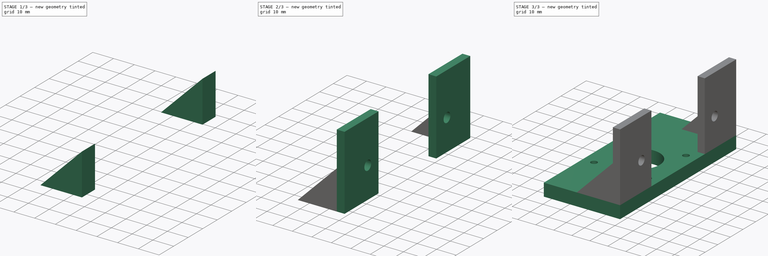
[diagram: build sequence overview — one tinted view per stage of 3, left to right]
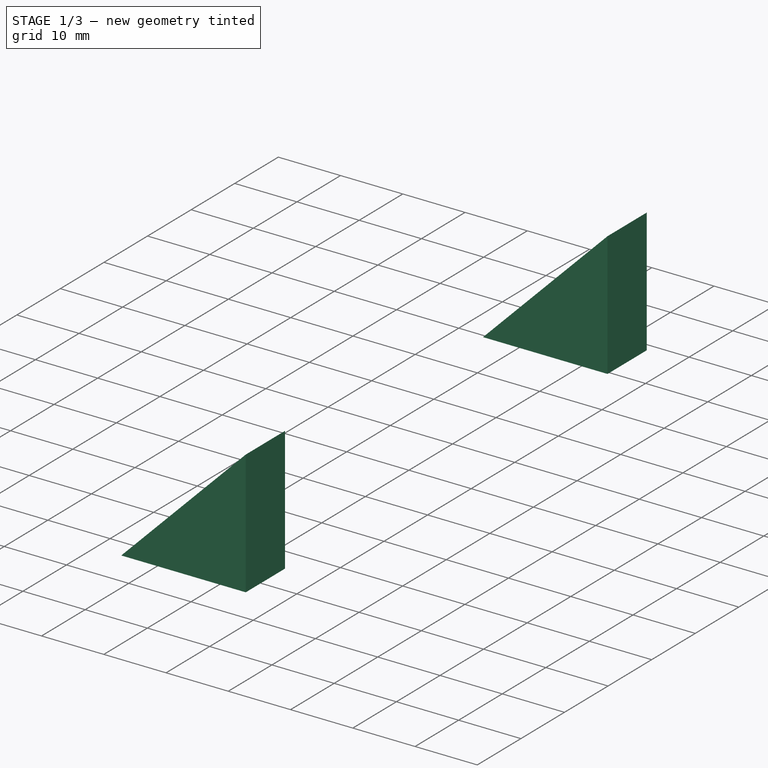
[diagram: stage 1 of 3 — iso view after this stage's code; geometry added in this stage tinted green]
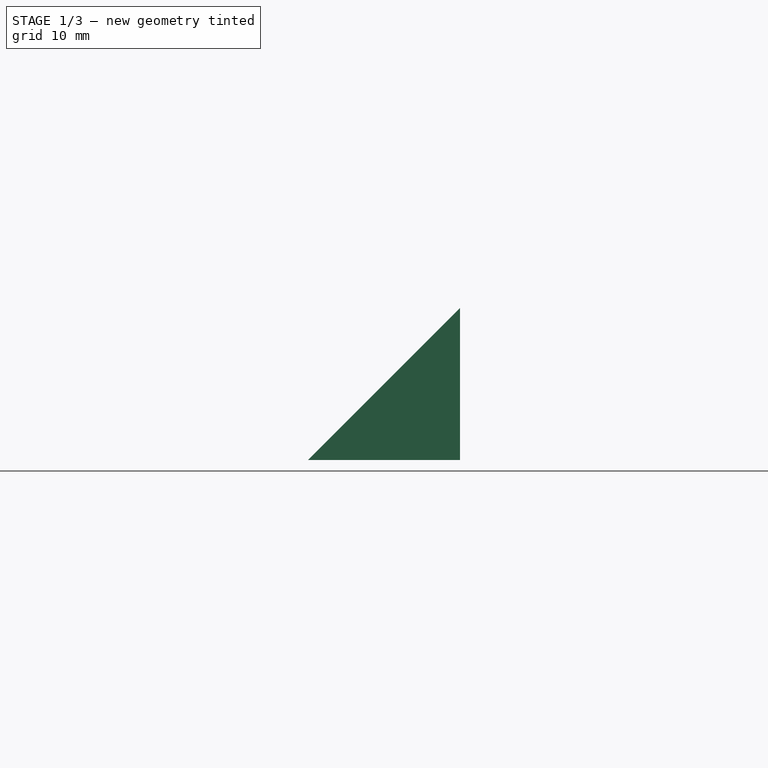
[diagram: stage 1 of 3 — front view after this stage's code; geometry added in this stage tinted green]
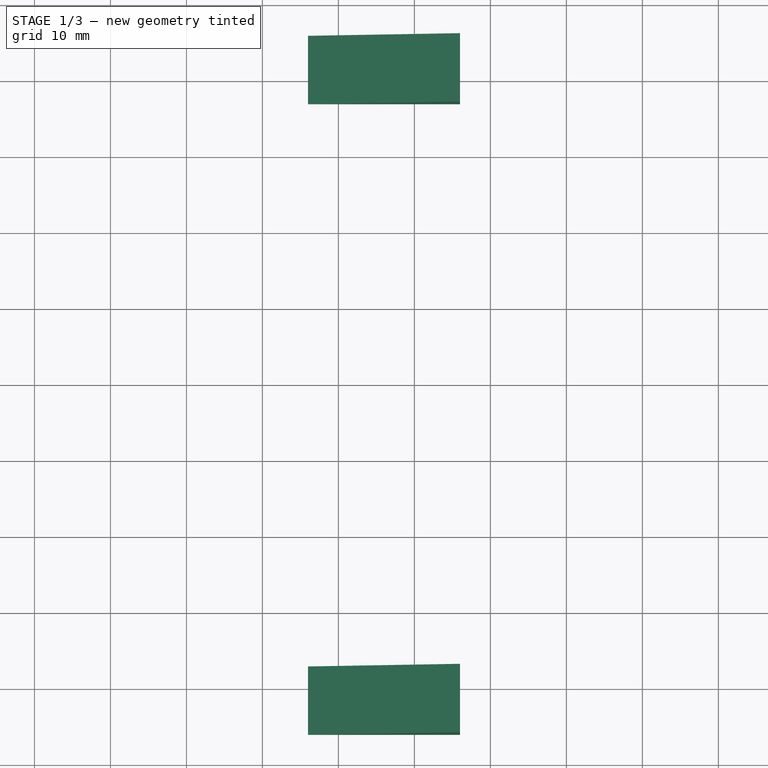
[diagram: stage 1 of 3 — top view after this stage's code; geometry added in this stage tinted green]
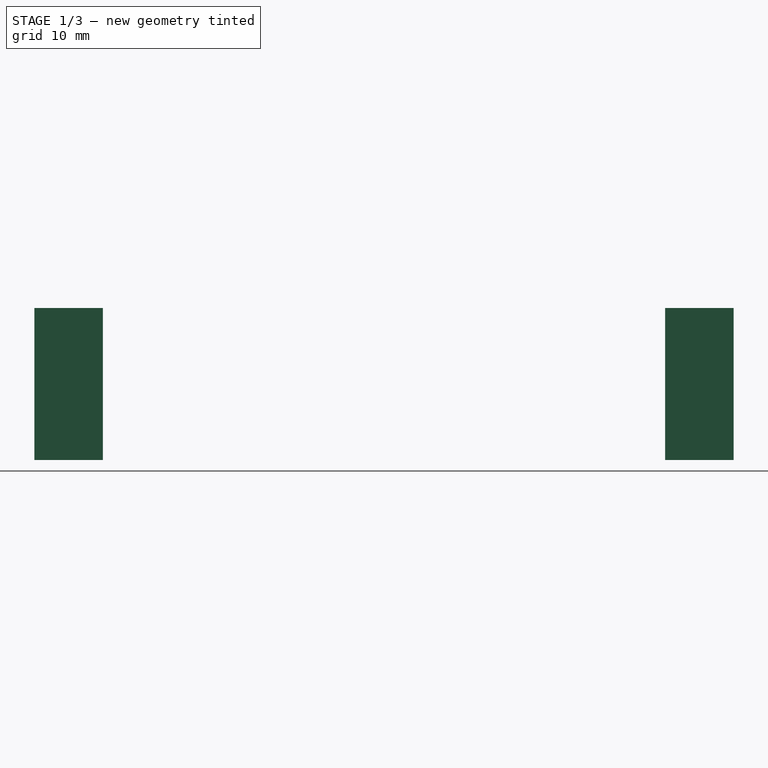
[diagram: stage 1 of 3 — right view after this stage's code; geometry added in this stage tinted green]
FCSTD DOCUMENT  (FreeCAD 0.15R4671 (Git))
Label: motor_mount
License: All rights reserved
LicenseURL: http://fr.wikipedia.org/wiki/<copyright redacted>
objects: Sketcher::SketchObject×4, PartDesign::Pad×4, Part::MultiFuse×1
note: 13 computed .brp shape members not serialized (recipe doc carries the construction recipe); baked Part::Feature solids carry a one-line shape summary decoded from their .brp

FEATURE [Sketcher::SketchObject] Sketch002  label="contrefort_1_sketch"
  Placement = pos=(0,-46,0) rot=(1,0,0;1.5708rad)
  sketch-geometry (3):
    g0: LineSegment StartX=-4 StartY=27 StartZ=0 EndX=-4 EndY=7 EndZ=0
    g1: LineSegment StartX=-4 StartY=7 StartZ=0 EndX=-24 EndY=7 EndZ=0
    g2: LineSegment StartX=-24 StartY=7 StartZ=0 EndX=-4 EndY=27 EndZ=0
  constraints (9):
    c: Vertical(g0)
    c: Coincident(g0,g1)
    c: Horizontal(g1)
    c: Coincident(g1,g2)
    c: Coincident(g2,g0)
    c: DistanceX(g1) = -20
    c: Equal(g1,g0)
    c: DistanceX(g-1,g0) = -4
    c: DistanceY(g-1,g1) = 7
FEATURE [PartDesign::Pad] Pad002  label="contrefort_1"
  Length = 9
  Length2 = 100
  Placement = pos=(0,-46,0) rot=(1,0,0;1.5708rad)
  Reversed = true
  Sketch = -> Sketch002
  Type = 0
FEATURE [Sketcher::SketchObject] Sketch003  label="contrefort_2_sketch"
  Placement = pos=(0,46,0) rot=(1,0,0;1.5708rad)
  sketch-geometry (3):
    g0: LineSegment StartX=-4 StartY=27 StartZ=0 EndX=-4 EndY=7 EndZ=0
    g1: LineSegment StartX=-4 StartY=7 StartZ=0 EndX=-24 EndY=7 EndZ=0
    g2: LineSegment StartX=-24 StartY=7 StartZ=0 EndX=-4 EndY=27 EndZ=0
  constraints (9):
    c: Vertical(g0)
    c: Coincident(g0,g1)
    c: Horizontal(g1)
    c: Coincident(g1,g2)
    c: Coincident(g2,g0)
    c: DistanceX(g1) = -20
    c: Equal(g1,g0)
    c: DistanceX(g-1,g0) = -4
    c: DistanceY(g-1,g1) = 7
FEATURE [PartDesign::Pad] Pad003  label="contrefort_2"
  Length = 9
  Length2 = 100
  Placement = pos=(0,46,0) rot=(1,0,0;1.5708rad)
  Sketch = -> Sketch003
  Type = 0
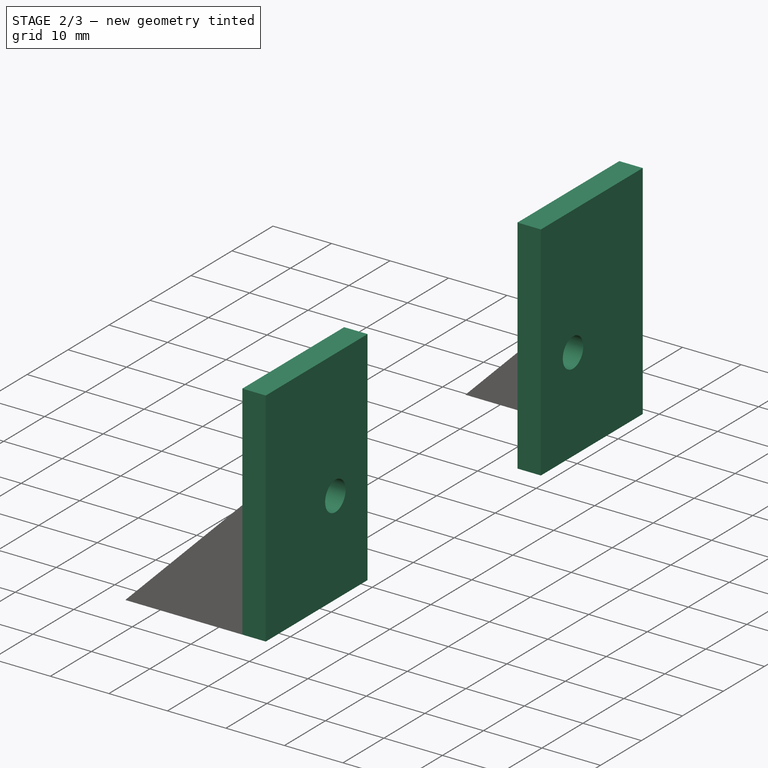
[diagram: stage 2 of 3 — iso view after this stage's code; geometry added in this stage tinted green]
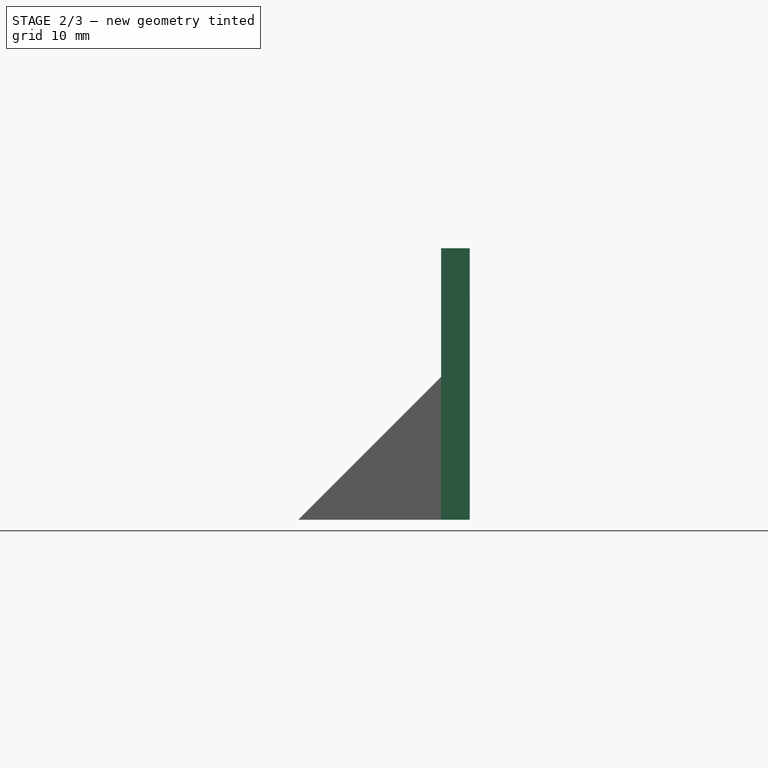
[diagram: stage 2 of 3 — front view after this stage's code; geometry added in this stage tinted green]
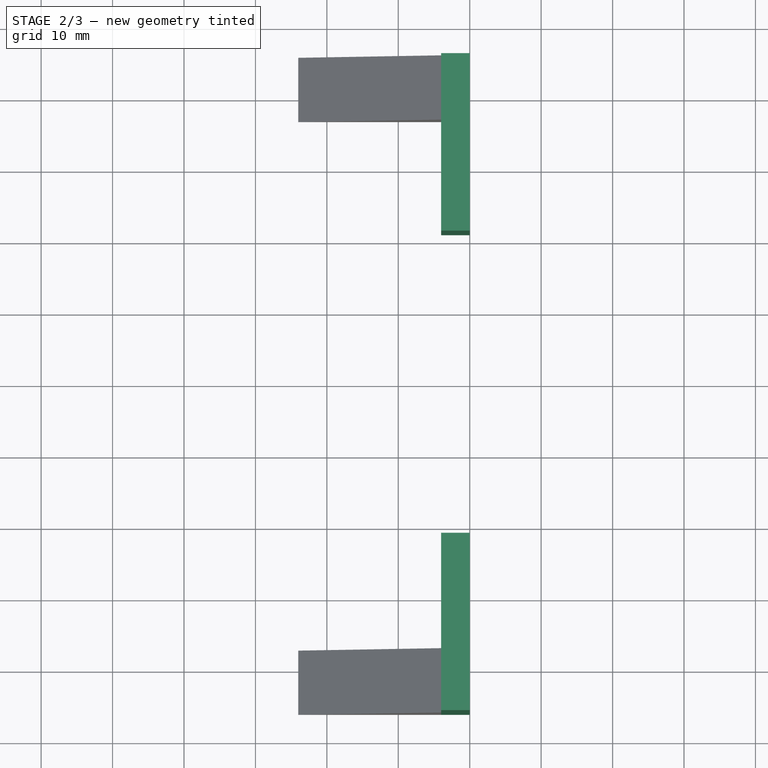
[diagram: stage 2 of 3 — top view after this stage's code; geometry added in this stage tinted green]
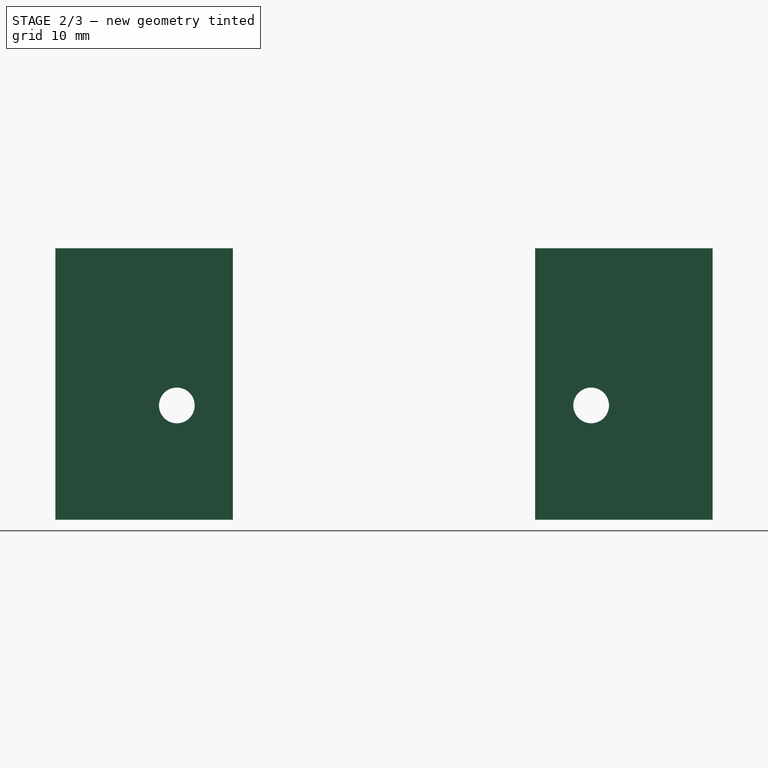
[diagram: stage 2 of 3 — right view after this stage's code; geometry added in this stage tinted green]
FEATURE [Sketcher::SketchObject] Sketch001  label="support_sketch"
  Placement = pos=(0,0,0) rot=(0.57735,0.57735,0.57735;2.0944rad)
  sketch-geometry (10):
    g0: LineSegment StartX=-46 StartY=45 StartZ=0 EndX=-21.15 EndY=45 EndZ=0
    g1: LineSegment StartX=-21.15 StartY=45 StartZ=0 EndX=-21.15 EndY=7 EndZ=0
    g2: LineSegment StartX=-21.15 StartY=7 StartZ=0 EndX=-46 EndY=7 EndZ=0
    g3: LineSegment StartX=-46 StartY=7 StartZ=0 EndX=-46 EndY=45 EndZ=0
    g4: LineSegment StartX=21.15 StartY=45 StartZ=0 EndX=46 EndY=45 EndZ=0
    g5: LineSegment StartX=46 StartY=45 StartZ=0 EndX=46 EndY=7 EndZ=0
    g6: LineSegment StartX=46 StartY=7 StartZ=0 EndX=21.15 EndY=7 EndZ=0
    g7: LineSegment StartX=21.15 StartY=7 StartZ=0 EndX=21.15 EndY=45 EndZ=0
    g8: Circle CenterX=-29 CenterY=23 CenterZ=0 NormalX=0 NormalY=0 NormalZ=1 Radius=2.5
    g9: Circle CenterX=29 CenterY=23 CenterZ=0 NormalX=0 NormalY=0 NormalZ=1 Radius=2.5
  constraints (28):
    c: Coincident(g0,g1)
    c: Coincident(g1,g2)
    c: Coincident(g2,g3)
    c: Coincident(g3,g0)
    c: Horizontal(g0)
    c: Horizontal(g2)
    c: Vertical(g1)
    c: Vertical(g3)
    c: DistanceY(g3) = 38
    c: DistanceX(g0) = 24.85
    c: Coincident(g4,g5)
    c: Coincident(g5,g6)
    c: Coincident(g6,g7)
    c: Coincident(g7,g4)
    c: Horizontal(g4)
    c: Horizontal(g6)
    c: Vertical(g5)
    c: Vertical(g7)
    c: Equal(g3,g5)
    c: Symmetric(g5,g2,g-2)
    c: Equal(g0,g4)
    c: Radius(g8) = 2.5
    c: DistanceX(g-1,g1) = -21.15
    c: DistanceY(g-1,g8) = 23
    c: DistanceX(g-1,g8) = -29
    c: Equal(g8,g9)
    c: Symmetric(g9,g8,g-2)
    c: DistanceY(g-1,g2) = 7
FEATURE [PartDesign::Pad] Pad001  label="support"
  Length = 4
  Length2 = 100
  Placement = pos=(0,0,0) rot=(0.57735,0.57735,0.57735;2.0944rad)
  Reversed = true
  Sketch = -> Sketch001
  Type = 0
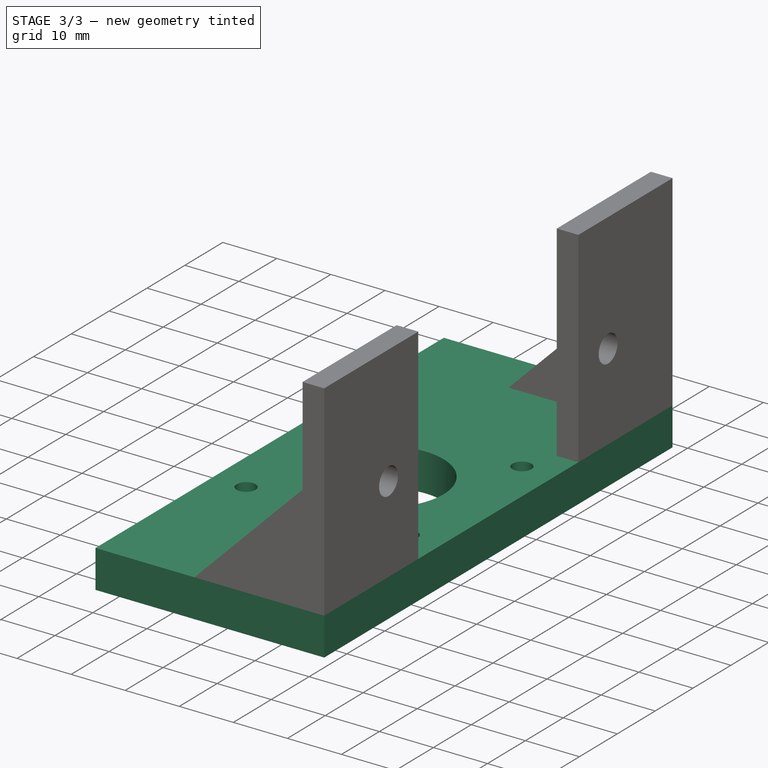
[diagram: stage 3 of 3 — iso view after this stage's code; geometry added in this stage tinted green]
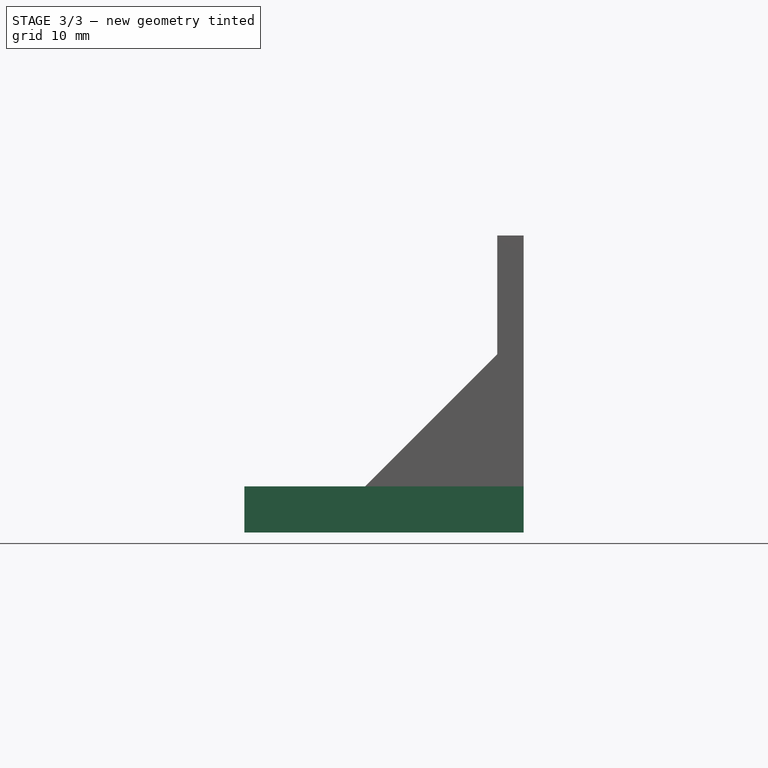
[diagram: stage 3 of 3 — front view after this stage's code; geometry added in this stage tinted green]
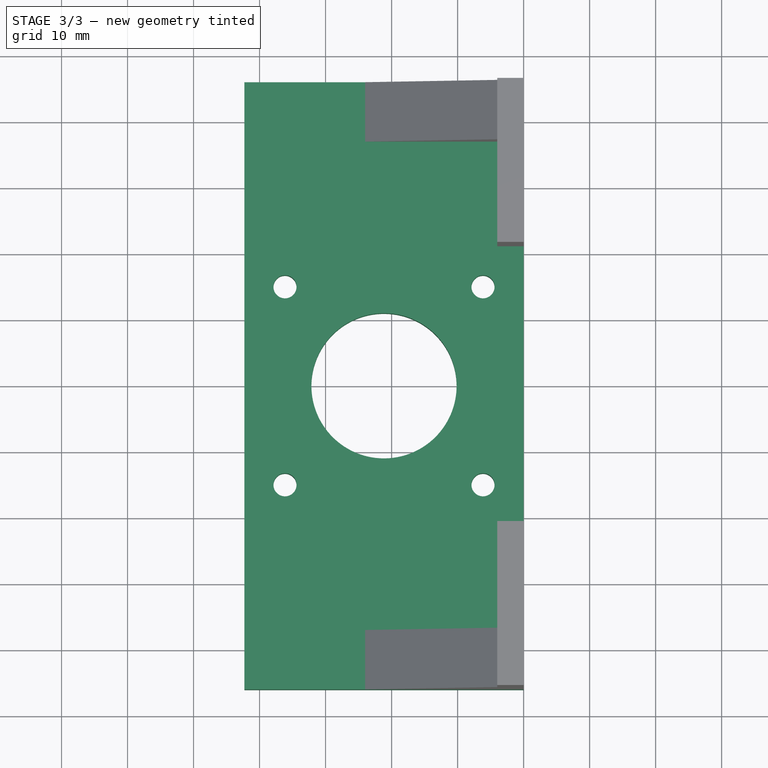
[diagram: stage 3 of 3 — top view after this stage's code; geometry added in this stage tinted green]
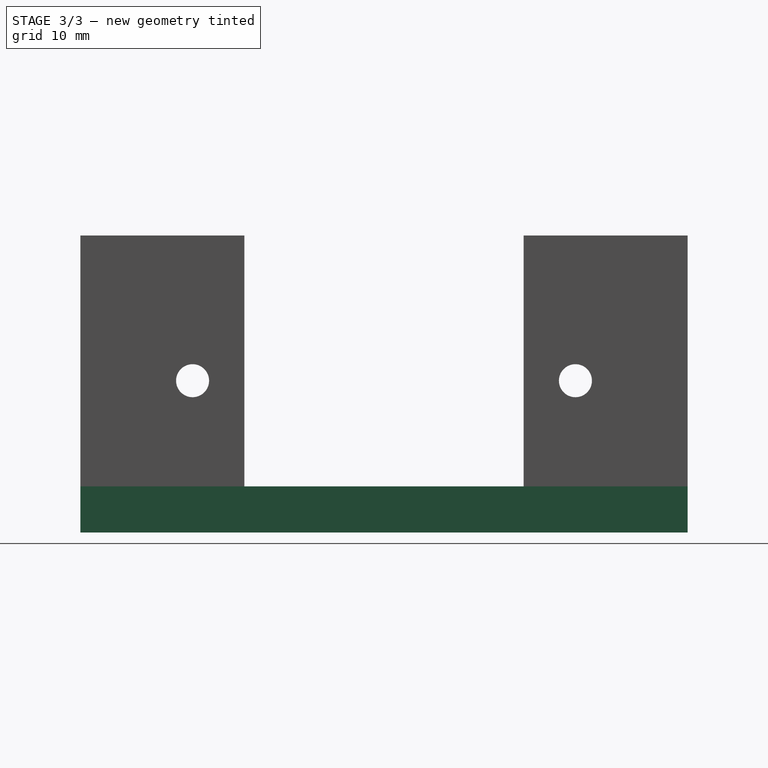
[diagram: stage 3 of 3 — right view after this stage's code; geometry added in this stage tinted green]
FEATURE [Sketcher::SketchObject] Sketch  label="moteur_sketch"
  sketch-geometry (9):
    g0: LineSegment StartX=-42.3 StartY=46 StartZ=0 EndX=0 EndY=46 EndZ=0
    g1: LineSegment StartX=0 StartY=46 StartZ=0 EndX=0 EndY=-46 EndZ=0
    g2: LineSegment StartX=0 StartY=-46 StartZ=0 EndX=-42.3 EndY=-46 EndZ=0
    g3: LineSegment StartX=-42.3 StartY=-46 StartZ=0 EndX=-42.3 EndY=46 EndZ=0
    g4: Circle CenterX=-6.15 CenterY=15 CenterZ=0 NormalX=0 NormalY=0 NormalZ=1 Radius=1.75
    g5: Circle CenterX=-21.15 CenterY=0 CenterZ=0 NormalX=0 NormalY=0 NormalZ=1 Radius=11
    g6: Circle CenterX=-36.15 CenterY=15 CenterZ=0 NormalX=0 NormalY=0 NormalZ=1 Radius=1.75
    g7: Circle CenterX=-36.15 CenterY=-15 CenterZ=0 NormalX=0 NormalY=0 NormalZ=1 Radius=1.75
    g8: Circle CenterX=-6.15 CenterY=-15 CenterZ=0 NormalX=0 NormalY=0 NormalZ=1 Radius=1.75
  constraints (27):
    c: Coincident(g0,g1)
    c: Coincident(g1,g2)
    c: Coincident(g2,g3)
    c: Coincident(g3,g0)
    c: Horizontal(g0)
    c: Horizontal(g2)
    c: Vertical(g1)
    c: Vertical(g3)
    c: DistanceY(g3) = 92
    c: DistanceX(g0) = 42.3
    c: Radius(g4) = 1.75
    c: PointOnObject(g5,g-1)
    c: Radius(g5) = 11
    c: Distance(g5,g1) = 21.15
    c: Symmetric(g2,g0,g-1)
    c: PointOnObject(g0,g-2)
    c: Equal(g4,g6)
    c: Equal(g6,g7)
    c: Equal(g7,g8)
    c: DistanceX(g6,g5) = 15
    c: DistanceY(g6,g5) = -15
    c: DistanceX(g7,g5) = 15
    c: DistanceY(g7,g5) = 15
    c: DistanceX(g8,g5) = -15
    c: DistanceX(g4,g5) = -15
    c: DistanceY(g4,g5) = -15
    c: DistanceY(g8,g5) = 15
FEATURE [PartDesign::Pad] Pad  label="moteur"
  Length = 7
  Length2 = 100
  Sketch = -> Sketch
  Type = 0
FEATURE [Part::MultiFuse] Fusion  label="fixation"
  Shapes = -> [Pad003,Pad001,Pad002,Pad]
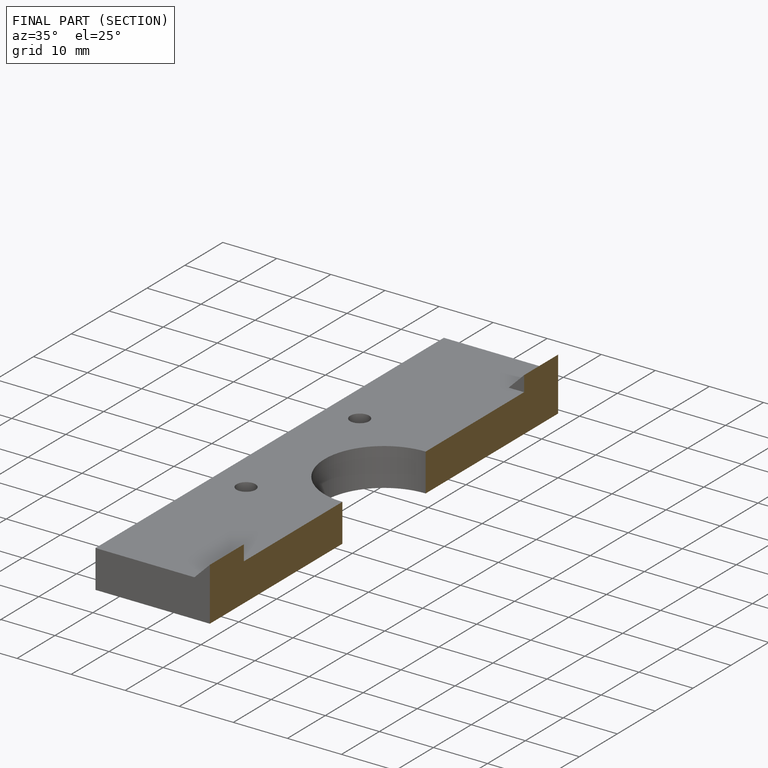
[diagram: finished part — half-section view (interior)]
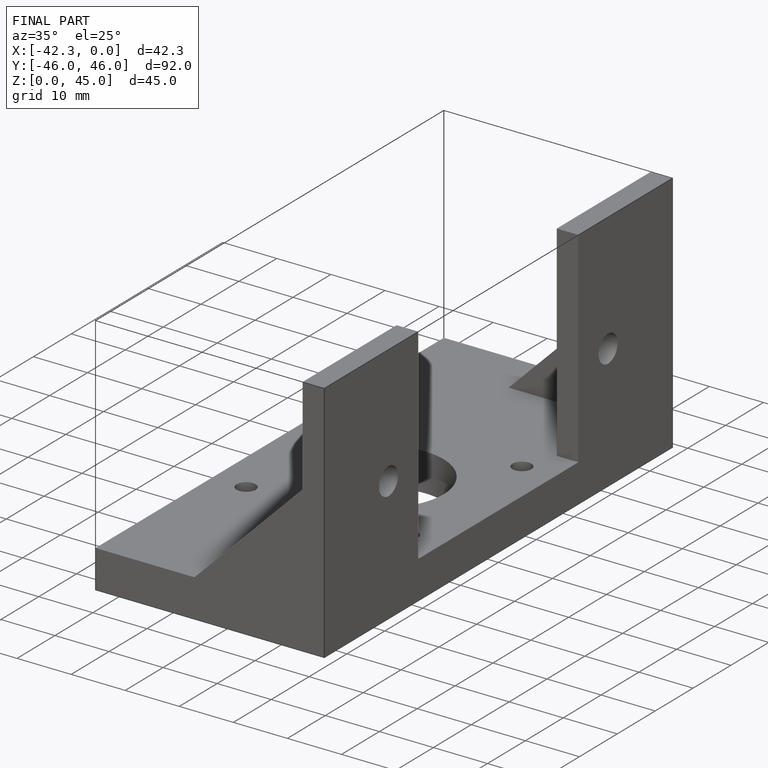
[diagram: finished part — iso view with bounding-box wireframe]
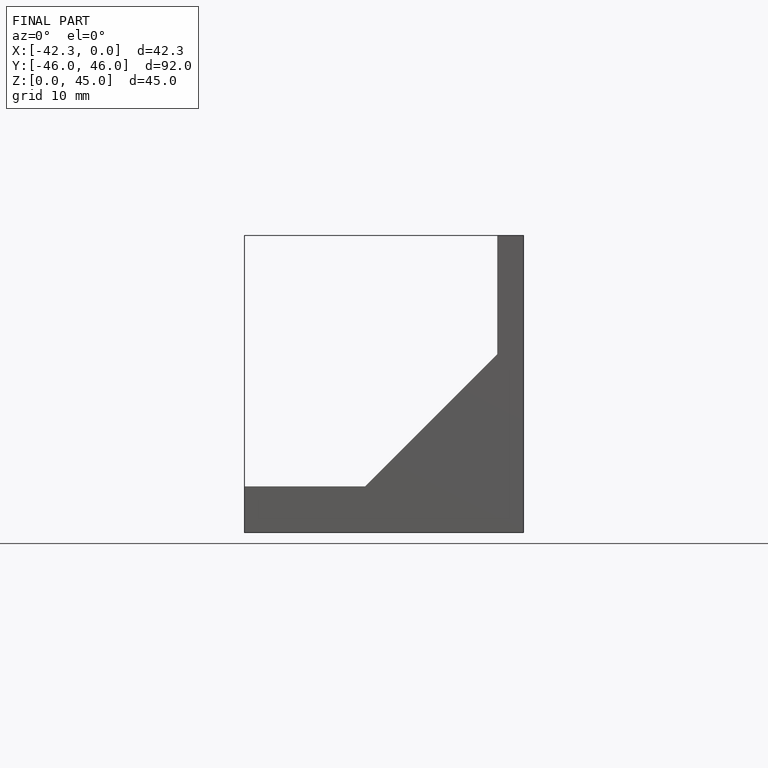
[diagram: finished part — front view with bounding-box wireframe]
